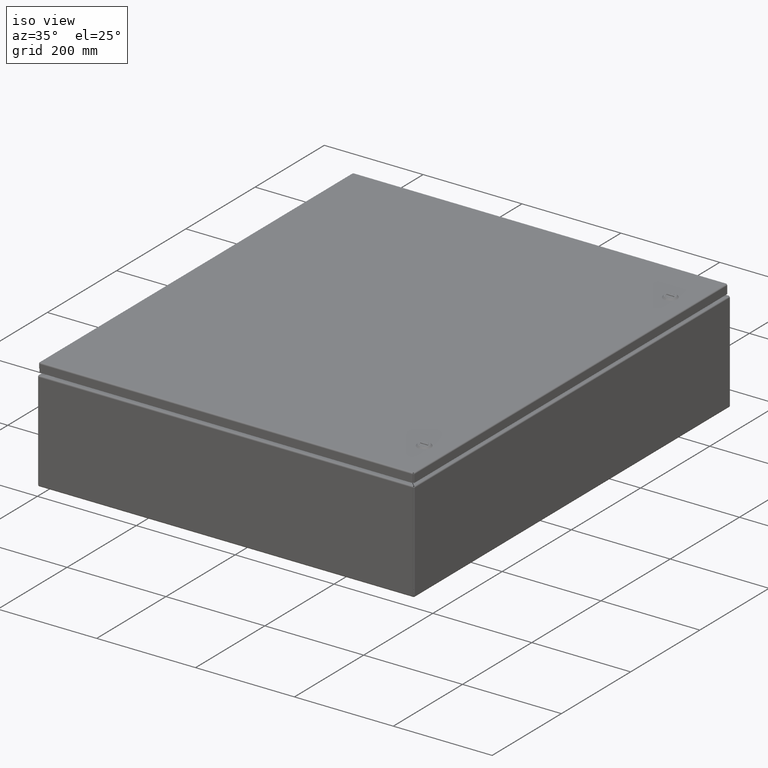
[diagram: clean part render]
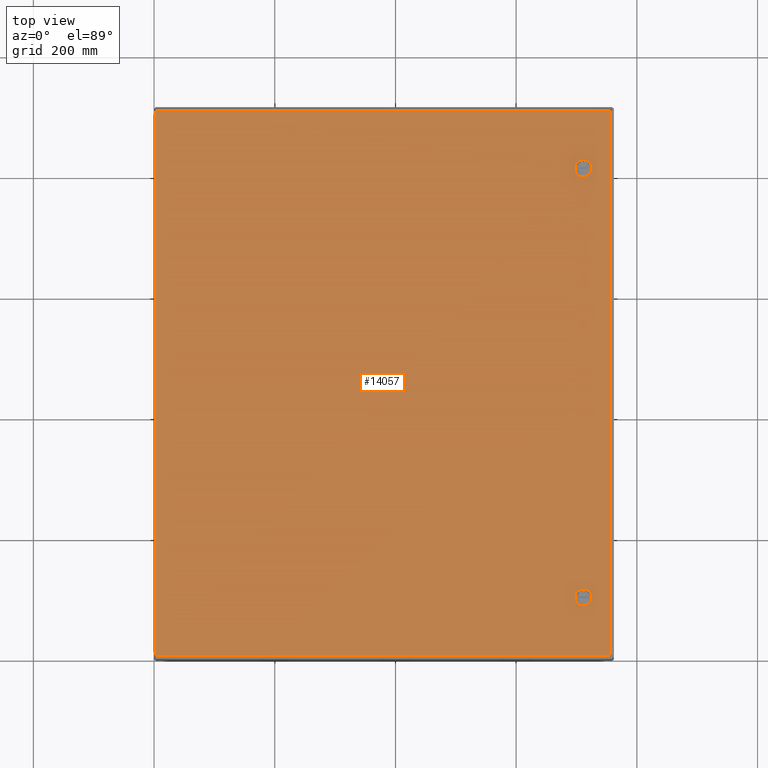
[diagram: tour spotlight — one face highlighted and labeled with its STEP entity id]
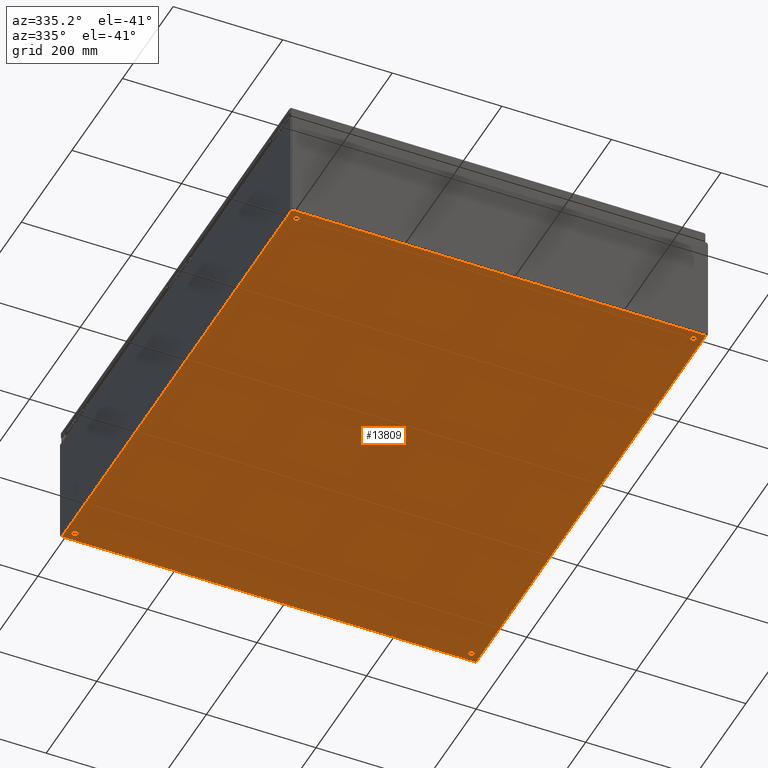
[diagram: tour spotlight — one face highlighted and labeled with its STEP entity id]
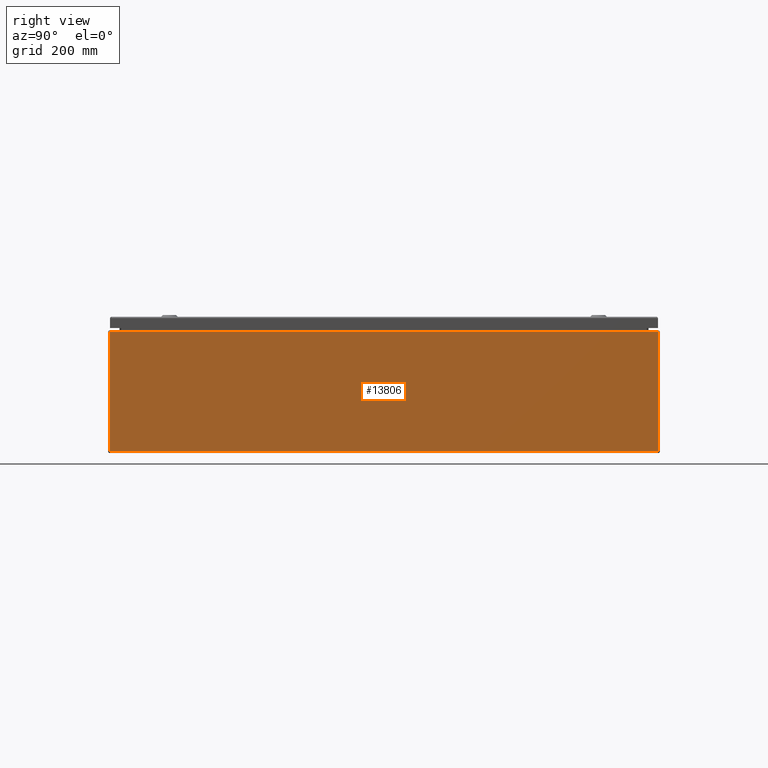
[diagram: tour spotlight — one face highlighted and labeled with its STEP entity id]
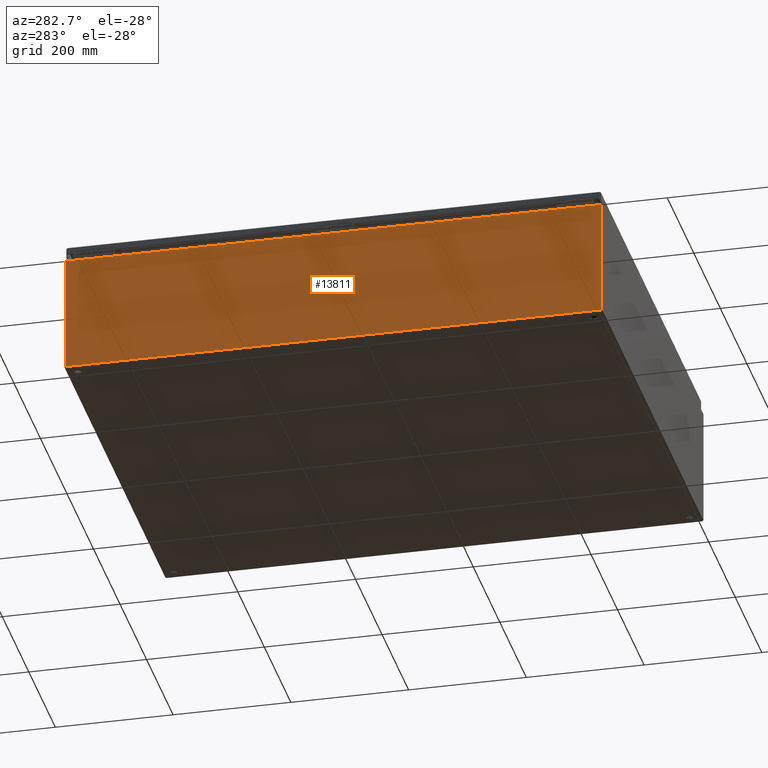
[diagram: tour spotlight — one face highlighted and labeled with its STEP entity id]
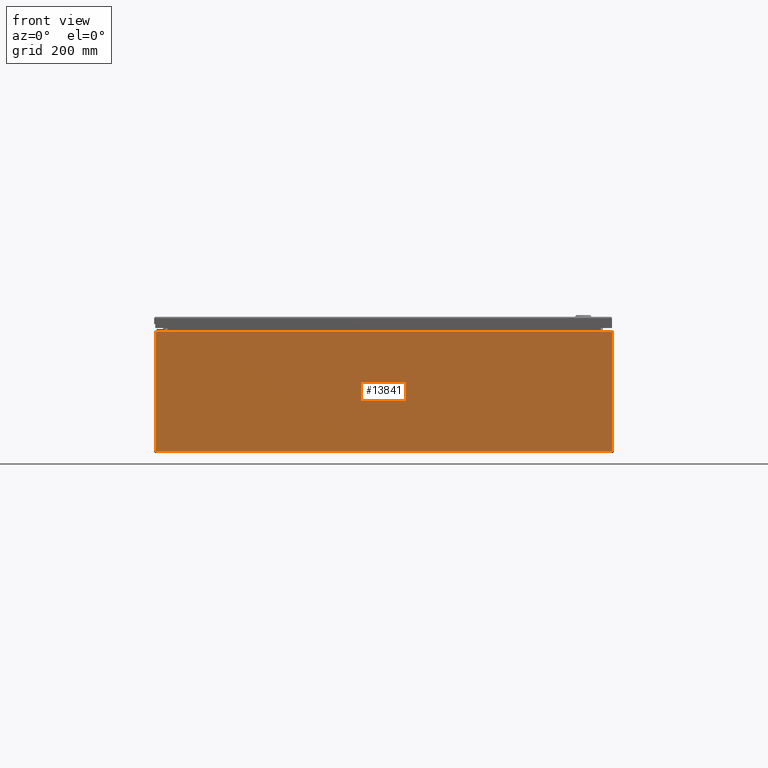
[diagram: tour spotlight — one face highlighted and labeled with its STEP entity id]
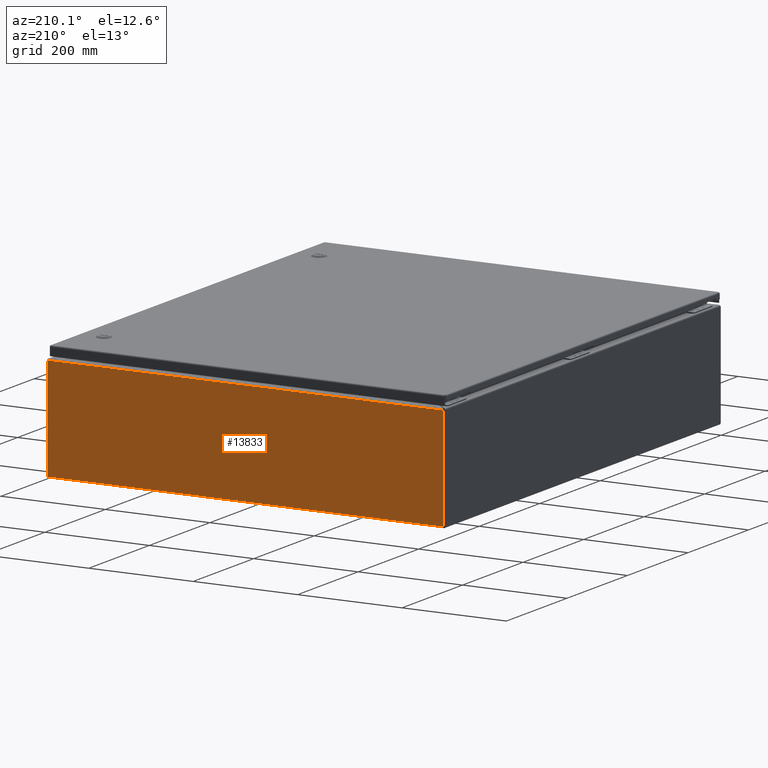
[diagram: tour spotlight — one face highlighted and labeled with its STEP entity id]
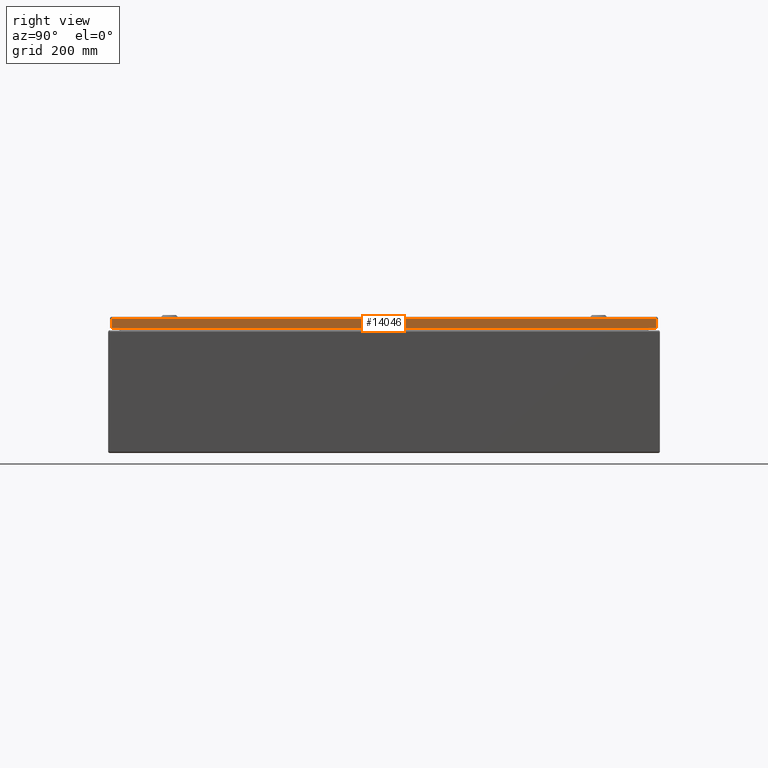
[diagram: tour spotlight — one face highlighted and labeled with its STEP entity id]
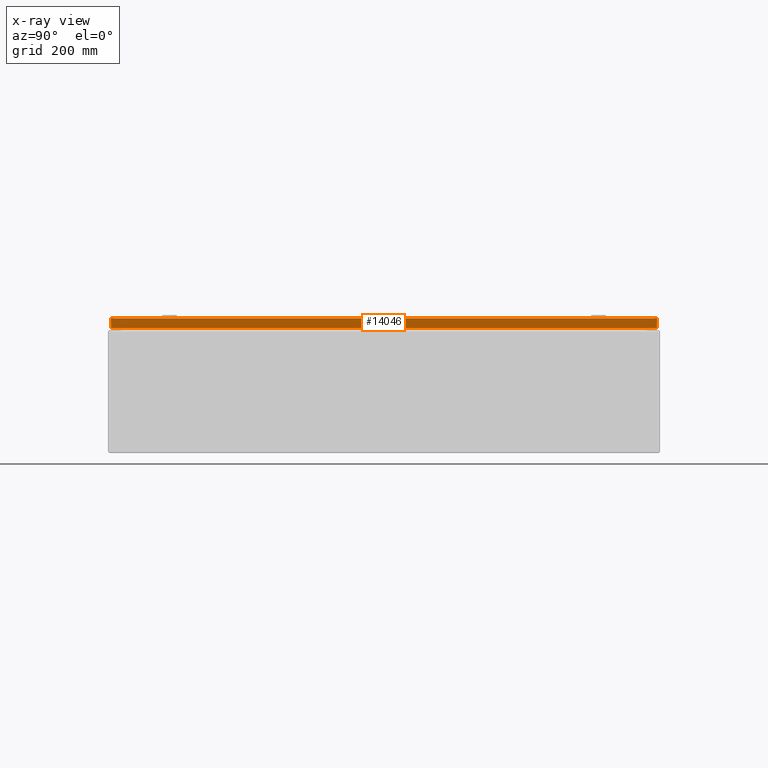
[diagram: x-ray of the same camera — body ghosted, this tour face saturated]
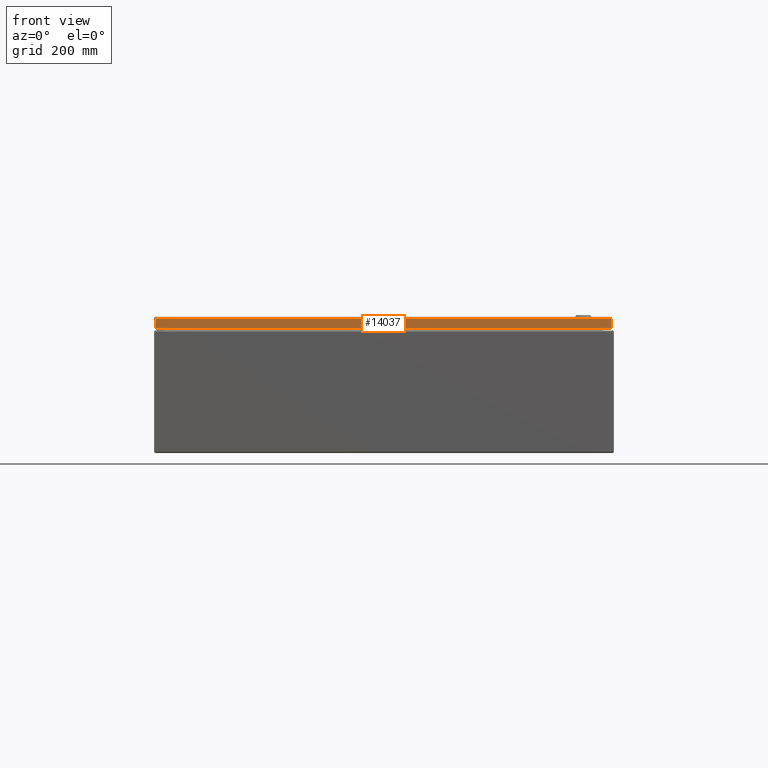
[diagram: tour spotlight — one face highlighted and labeled with its STEP entity id]
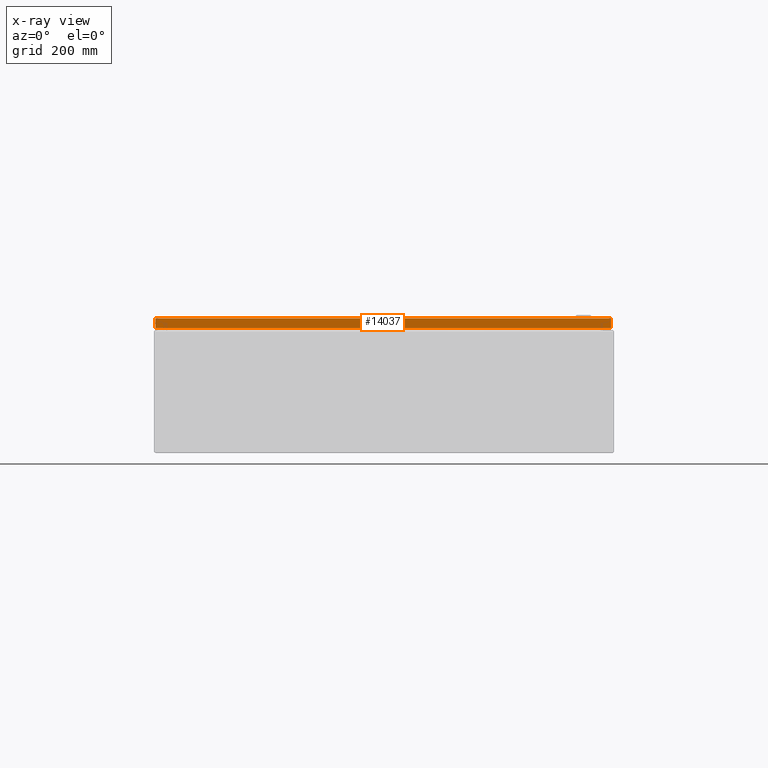
[diagram: x-ray of the same camera — body ghosted, this tour face saturated]
A machine part: a face-by-face anatomy tour. The part has 2151 B-rep faces; the first image is the clean iso view, then the 8 largest visible faces are spotlighted one at a time (largest first), each with its STEP entity span.

Face 1 — top view, entity #14057. In plain terms, the highlighted planar face has unit normal (-0, -0, -1).
Definition (entity closure, byte-faithful):
#542=FACE_BOUND('',#2824,.T.);
#543=FACE_BOUND('',#2825,.T.);
#756=CIRCLE('',#14895,0.453);
#758=CIRCLE('',#14899,0.453);
#760=CIRCLE('',#14903,0.453);
#762=CIRCLE('',#14907,0.453);
#764=CIRCLE('',#14911,0.453);
#766=CIRCLE('',#14915,0.453);
#768=CIRCLE('',#14919,0.453);
#770=CIRCLE('',#14923,0.453);
#1372=PLANE('',#14965);
#1899=FACE_OUTER_BOUND('',#2823,.T.);
#2823=EDGE_LOOP('',(#10362,#10363,#10364,#10365));
#2824=EDGE_LOOP('',(#10366,#10367,#10368,#10369,#10370,#10371,#10372,#10373));
#2825=EDGE_LOOP('',(#10374,#10375,#10376,#10377,#10378,#10379,#10380,#10381));
#4135=LINE('',#22659,#5216);
#4139=LINE('',#22671,#5220);
#4143=LINE('',#22683,#5224);
#4147=LINE('',#22693,#5228);
#4151=LINE('',#22707,#5232);
#4155=LINE('',#22719,#5236);
#4159=LINE('',#22731,#5240);
#4163=LINE('',#22741,#5244);
#4211=LINE('',#22847,#5292);
#4217=LINE('',#22929,#5298);
#4232=LINE('',#23029,#5313);
#4247=LINE('',#23128,#5328);
#5216=VECTOR('',#16707,0.425248162841435);
#5220=VECTOR('',#16719,0.425248162841369);
#5224=VECTOR('',#16731,0.425248162841435);
#5228=VECTOR('',#16743,0.425248162841459);
#5232=VECTOR('',#16755,0.425248162841431);
#5236=VECTOR('',#16767,0.425248162841431);
#5240=VECTOR('',#16779,0.425248162841408);
#5244=VECTOR('',#16791,0.425248162841408);
#5292=VECTOR('',#16873,35.5395);
#5298=VECTOR('',#16885,29.6645);
#5313=VECTOR('',#16914,35.5395);
#5328=VECTOR('',#16943,29.6645);
#6309=VERTEX_POINT('',#22650);
#6310=VERTEX_POINT('',#22652);
#6312=VERTEX_POINT('',#22658);
#6314=VERTEX_POINT('',#22664);
#6316=VERTEX_POINT('',#22670);
#6318=VERTEX_POINT('',#22676);
#6320=VERTEX_POINT('',#22682);
#6322=VERTEX_POINT('',#22688);
#6325=VERTEX_POINT('',#22698);
#6326=VERTEX_POINT('',#22700);
#6328=VERTEX_POINT('',#22706);
#6330=VERTEX_POINT('',#22712);
#6332=VERTEX_POINT('',#22718);
#6334=VERTEX_POINT('',#22724);
#6336=VERTEX_POINT('',#22730);
#6338=VERTEX_POINT('',#22736);
#6371=VERTEX_POINT('',#22838);
#6372=VERTEX_POINT('',#22846);
#6377=VERTEX_POINT('',#22921);
#6387=VERTEX_POINT('',#23021);
#7737=EDGE_CURVE('',#6310,#6309,#756,.T.);
#7740=EDGE_CURVE('',#6312,#6310,#4135,.T.);
#7743=EDGE_CURVE('',#6314,#6312,#758,.T.);
#7746=EDGE_CURVE('',#6316,#6314,#4139,.T.);
#7749=EDGE_CURVE('',#6318,#6316,#760,.T.);
#7752=EDGE_CURVE('',#6320,#6318,#4143,.T.);
#7755=EDGE_CURVE('',#6322,#6320,#762,.T.);
#7758=EDGE_CURVE('',#6309,#6322,#4147,.T.);
#7761=EDGE_CURVE('',#6326,#6325,#764,.T.);
#7764=EDGE_CURVE('',#6328,#6326,#4151,.T.);
#7767=EDGE_CURVE('',#6330,#6328,#766,.T.);
#7770=EDGE_CURVE('',#6332,#6330,#4155,.T.);
#7773=EDGE_CURVE('',#6334,#6332,#768,.T.);
#7776=EDGE_CURVE('',#6336,#6334,#4159,.T.);
#7779=EDGE_CURVE('',#6338,#6336,#770,.T.);
#7782=EDGE_CURVE('',#6325,#6338,#4163,.T.);
#7831=EDGE_CURVE('',#6372,#6371,#4211,.T.);
#7841=EDGE_CURVE('',#6371,#6377,#4217,.T.);
#7860=EDGE_CURVE('',#6377,#6387,#4232,.T.);
#7879=EDGE_CURVE('',#6387,#6372,#4247,.T.);
#10362=ORIENTED_EDGE('',*,*,#7831,.T.);
#10363=ORIENTED_EDGE('',*,*,#7841,.T.);
#10364=ORIENTED_EDGE('',*,*,#7860,.T.);
#10365=ORIENTED_EDGE('',*,*,#7879,.T.);
#10366=ORIENTED_EDGE('',*,*,#7737,.T.);
#10367=ORIENTED_EDGE('',*,*,#7758,.T.);
#10368=ORIENTED_EDGE('',*,*,#7755,.T.);
#10369=ORIENTED_EDGE('',*,*,#7752,.T.);
#10370=ORIENTED_EDGE('',*,*,#7749,.T.);
#10371=ORIENTED_EDGE('',*,*,#7746,.T.);
#10372=ORIENTED_EDGE('',*,*,#7743,.T.);
#10373=ORIENTED_EDGE('',*,*,#7740,.T.);
#10374=ORIENTED_EDGE('',*,*,#7761,.T.);
#10375=ORIENTED_EDGE('',*,*,#7782,.T.);
#10376=ORIENTED_EDGE('',*,*,#7779,.T.);
#10377=ORIENTED_EDGE('',*,*,#7776,.T.);
#10378=ORIENTED_EDGE('',*,*,#7773,.T.);
#10379=ORIENTED_EDGE('',*,*,#7770,.T.);
#10380=ORIENTED_EDGE('',*,*,#7767,.T.);
#10381=ORIENTED_EDGE('',*,*,#7764,.T.);
#14057=ADVANCED_FACE('',(#1899,#542,#543),#1372,.F.);
#14895=AXIS2_PLACEMENT_3D('',#22653,#16701,#16702);
#14899=AXIS2_PLACEMENT_3D('',#22665,#16713,#16714);
#14903=AXIS2_PLACEMENT_3D('',#22677,#16725,#16726);
#14907=AXIS2_PLACEMENT_3D('',#22689,#16737,#16738);
#14911=AXIS2_PLACEMENT_3D('',#22701,#16749,#16750);
#14915=AXIS2_PLACEMENT_3D('',#22713,#16761,#16762);
#14919=AXIS2_PLACEMENT_3D('',#22725,#16773,#16774);
#14923=AXIS2_PLACEMENT_3D('',#22737,#16785,#16786);
#14965=AXIS2_PLACEMENT_3D('',#23214,#16968,#16969);
#16701=DIRECTION('center_axis',(0.,0.,1.));
#16702=DIRECTION('ref_axis',(-0.469368833158343,-0.883002207505494,0.));
#16707=DIRECTION('',(0.,1.,0.));
#16713=DIRECTION('center_axis',(0.,0.,1.));
#16714=DIRECTION('ref_axis',(-0.883002207505508,0.469368833158317,0.));
#16719=DIRECTION('',(1.,0.,0.));
#16725=DIRECTION('center_axis',(0.,0.,1.));
#16726=DIRECTION('ref_axis',(0.469368833158244,0.883002207505547,0.));
#16731=DIRECTION('',(0.,-1.,0.));
#16737=DIRECTION('center_axis',(0.,0.,1.));
#16738=DIRECTION('ref_axis',(0.883002207505508,-0.469368833158317,0.));
#16743=DIRECTION('',(-1.,0.,0.));
#16749=DIRECTION('center_axis',(0.,0.,1.));
#16750=DIRECTION('ref_axis',(-0.469368833158288,-0.883002207505523,0.));
#16755=DIRECTION('',(0.,1.,0.));
#16761=DIRECTION('center_axis',(0.,0.,1.));
#16762=DIRECTION('ref_axis',(-0.883002207505511,0.469368833158312,0.));
#16767=DIRECTION('',(1.,0.,0.));
#16773=DIRECTION('center_axis',(0.,0.,1.));
#16774=DIRECTION('ref_axis',(0.469368833158311,0.883002207505511,0.));
#16779=DIRECTION('',(0.,-1.,0.));
#16785=DIRECTION('center_axis',(0.,0.,1.));
#16786=DIRECTION('ref_axis',(0.883002207505524,-0.469368833158286,0.));
#16791=DIRECTION('',(-1.,0.,0.));
#16873=DIRECTION('',(0.,-1.,0.));
#16885=DIRECTION('',(-1.,0.,0.));
#16914=DIRECTION('',(-3.06241855027742E-16,1.,0.));
#16943=DIRECTION('',(1.,0.,0.));
#16968=DIRECTION('center_axis',(0.,0.,1.));
#16969=DIRECTION('ref_axis',(1.,0.,0.));
#22650=CARTESIAN_POINT('',(2.08762408142072,4.27499999999998,0.));
#22652=CARTESIAN_POINT('',(2.27499999999998,4.08762408142071,0.));
#22653=CARTESIAN_POINT('Origin',(1.87499999999999,3.87499999999999,0.));
#22658=CARTESIAN_POINT('',(2.27499999999998,3.66237591857928,0.));
#22659=CARTESIAN_POINT('',(2.27499999999998,10.9813120407104,0.));
#22664=CARTESIAN_POINT('',(2.08762408142067,3.47499999999998,0.));
#22665=CARTESIAN_POINT('Origin',(1.87499999999999,3.87499999999999,0.));
#22670=CARTESIAN_POINT('',(1.66237591857931,3.47499999999998,0.));
#22671=CARTESIAN_POINT('',(8.51256204071033,3.47499999999998,0.));
#22676=CARTESIAN_POINT('',(1.47499999999999,3.66237591857928,0.));
#22677=CARTESIAN_POINT('Origin',(1.87499999999999,3.87499999999999,0.));
#22682=CARTESIAN_POINT('',(1.47499999999999,4.08762408142071,0.));
#22683=CARTESIAN_POINT('',(1.475,10.7686879592896,0.));
#22688=CARTESIAN_POINT('',(1.66237591857926,4.27499999999998,0.));
#22689=CARTESIAN_POINT('Origin',(1.87499999999999,3.87499999999999,0.));
#22693=CARTESIAN_POINT('',(8.29993795928963,4.27499999999998,0.));
#22698=CARTESIAN_POINT('',(2.08762408142069,32.275,0.));
#22700=CARTESIAN_POINT('',(2.27499999999999,32.0876240814207,0.));
#22701=CARTESIAN_POINT('Origin',(1.87499999999999,31.875,0.));
#22706=CARTESIAN_POINT('',(2.27499999999999,31.6623759185793,0.));
#22707=CARTESIAN_POINT('',(2.27499999999999,24.9813120407104,0.));
#22712=CARTESIAN_POINT('',(2.0876240814207,31.475,0.));
#22713=CARTESIAN_POINT('Origin',(1.87499999999999,31.875,0.));
#22718=CARTESIAN_POINT('',(1.66237591857927,31.475,0.));
#22719=CARTESIAN_POINT('',(8.51256204071035,31.475,0.));
#22724=CARTESIAN_POINT('',(1.47499999999999,31.6623759185793,0.));
#22725=CARTESIAN_POINT('Origin',(1.87499999999999,31.875,0.));
#22730=CARTESIAN_POINT('',(1.47499999999999,32.0876240814207,0.));
#22731=CARTESIAN_POINT('',(1.47499999999999,24.7686879592896,0.));
#22736=CARTESIAN_POINT('',(1.66237591857929,32.275,0.));
#22737=CARTESIAN_POINT('Origin',(1.87499999999999,31.875,0.));
#22741=CARTESIAN_POINT('',(8.29993795928964,32.275,0.));
#22838=CARTESIAN_POINT('',(29.76975,0.105250000000001,-2.18547839493141E-17));
#22846=CARTESIAN_POINT('',(29.76975,35.64475,-2.18547839493141E-17));
#22847=CARTESIAN_POINT('',(29.76975,26.759875,0.));
#22921=CARTESIAN_POINT('',(0.105250000000001,0.105250000000001,-1.09273919746571E-17));
#22929=CARTESIAN_POINT('',(22.353625,0.105250000000001,0.));
#23021=CARTESIAN_POINT('',(0.10524999999999,35.64475,-2.18547839493141E-17));
#23029=CARTESIAN_POINT('',(0.105249999999998,8.990125,0.));
#23128=CARTESIAN_POINT('',(7.52137499999999,35.64475,0.));
#23214=CARTESIAN_POINT('Origin',(14.9375,17.875,0.));

Face 2 — auxiliary view, entity #13809. In plain terms, the highlighted planar face has unit normal (0, 0, 1).
Definition (entity closure, byte-faithful):
#507=FACE_BOUND('',#2541,.T.);
#508=FACE_BOUND('',#2542,.T.);
#509=FACE_BOUND('',#2543,.T.);
#510=FACE_BOUND('',#2544,.T.);
#728=CIRCLE('',#14718,0.21875);
#730=CIRCLE('',#14721,0.21875);
#731=CIRCLE('',#14722,0.21875);
#732=CIRCLE('',#14723,0.21875);
#1260=PLANE('',#14720);
#1651=FACE_OUTER_BOUND('',#2540,.T.);
#2540=EDGE_LOOP('',(#9306,#9307,#9308,#9309));
#2541=EDGE_LOOP('',(#9310));
#2542=EDGE_LOOP('',(#9311));
#2543=EDGE_LOOP('',(#9312));
#2544=EDGE_LOOP('',(#9313));
#3923=LINE('',#20074,#5004);
#3924=LINE('',#20096,#5005);
#3925=LINE('',#20098,#5006);
#3926=LINE('',#20099,#5007);
#5004=VECTOR('',#16135,35.7895);
#5005=VECTOR('',#16144,29.7895);
#5006=VECTOR('',#16145,35.7895);
#5007=VECTOR('',#16146,29.7895);
#6090=VERTEX_POINT('',#20072);
#6091=VERTEX_POINT('',#20073);
#6092=VERTEX_POINT('',#20090);
#6094=VERTEX_POINT('',#20095);
#6095=VERTEX_POINT('',#20097);
#6096=VERTEX_POINT('',#20100);
#6097=VERTEX_POINT('',#20102);
#6098=VERTEX_POINT('',#20104);
#7351=EDGE_CURVE('',#6090,#6091,#3923,.T.);
#7354=EDGE_CURVE('',#6092,#6092,#728,.T.);
#7356=EDGE_CURVE('',#6091,#6094,#3924,.T.);
#7357=EDGE_CURVE('',#6094,#6095,#3925,.T.);
#7358=EDGE_CURVE('',#6095,#6090,#3926,.T.);
#7359=EDGE_CURVE('',#6096,#6096,#730,.T.);
#7360=EDGE_CURVE('',#6097,#6097,#731,.T.);
#7361=EDGE_CURVE('',#6098,#6098,#732,.T.);
#9306=ORIENTED_EDGE('',*,*,#7351,.T.);
#9307=ORIENTED_EDGE('',*,*,#7356,.T.);
#9308=ORIENTED_EDGE('',*,*,#7357,.T.);
#9309=ORIENTED_EDGE('',*,*,#7358,.T.);
#9310=ORIENTED_EDGE('',*,*,#7359,.T.);
#9311=ORIENTED_EDGE('',*,*,#7360,.T.);
#9312=ORIENTED_EDGE('',*,*,#7361,.T.);
#9313=ORIENTED_EDGE('',*,*,#7354,.T.);
#13809=ADVANCED_FACE('',(#1651,#507,#508,#509,#510),#1260,.F.);
#14718=AXIS2_PLACEMENT_3D('',#20091,#16138,#16139);
#14720=AXIS2_PLACEMENT_3D('',#20094,#16142,#16143);
#14721=AXIS2_PLACEMENT_3D('',#20101,#16147,#16148);
#14722=AXIS2_PLACEMENT_3D('',#20103,#16149,#16150);
#14723=AXIS2_PLACEMENT_3D('',#20105,#16151,#16152);
#16135=DIRECTION('',(0.,-1.,0.));
#16138=DIRECTION('center_axis',(0.,0.,1.));
#16139=DIRECTION('ref_axis',(1.,0.,0.));
#16142=DIRECTION('center_axis',(0.,0.,1.));
#16143=DIRECTION('ref_axis',(1.,0.,0.));
#16144=DIRECTION('',(-1.,0.,0.));
#16145=DIRECTION('',(-3.06545258876366E-16,1.,0.));
#16146=DIRECTION('',(1.,0.,0.));
#16147=DIRECTION('center_axis',(0.,0.,1.));
#16148=DIRECTION('ref_axis',(1.,0.,0.));
#16149=DIRECTION('center_axis',(0.,0.,1.));
#16150=DIRECTION('ref_axis',(1.,0.,0.));
#16151=DIRECTION('center_axis',(0.,0.,1.));
#16152=DIRECTION('ref_axis',(1.,0.,0.));
#20072=CARTESIAN_POINT('',(29.89475,35.89475,-2.18547839493141E-17));
#20073=CARTESIAN_POINT('',(29.89475,0.105250000000007,-3.27821759239712E-17));
#20074=CARTESIAN_POINT('',(29.89475,26.947375,0.));
#20090=CARTESIAN_POINT('',(0.531249999999996,0.750000000000002,0.));
#20091=CARTESIAN_POINT('Origin',(0.749999999999996,0.750000000000002,0.));
#20094=CARTESIAN_POINT('Origin',(15.,18.,0.));
#20095=CARTESIAN_POINT('',(0.105250000000007,0.105250000000007,-1.09273919746571E-17));
#20096=CARTESIAN_POINT('',(22.447375,0.105250000000001,0.));
#20097=CARTESIAN_POINT('',(0.10524999999999,35.89475,-2.18547839493141E-17));
#20098=CARTESIAN_POINT('',(0.105250000000004,9.052625,0.));
#20099=CARTESIAN_POINT('',(7.55262499999999,35.89475,0.));
#20100=CARTESIAN_POINT('',(29.03125,0.749999999999999,0.));
#20101=CARTESIAN_POINT('Origin',(29.25,0.749999999999999,0.));
#20102=CARTESIAN_POINT('',(29.03125,35.25,0.));
#20103=CARTESIAN_POINT('Origin',(29.25,35.25,0.));
#20104=CARTESIAN_POINT('',(0.531249999999993,35.25,0.));
#20105=CARTESIAN_POINT('Origin',(0.749999999999993,35.25,0.));

Face 3 — right view, entity #13806. In plain terms, the highlighted planar face has unit normal (-1, -0, -0).
Definition (entity closure, byte-faithful):
#1259=PLANE('',#14715);
#1648=FACE_OUTER_BOUND('',#2536,.T.);
#2536=EDGE_LOOP('',(#9296,#9297,#9298,#9299));
#3919=LINE('',#20050,#5000);
#3920=LINE('',#20068,#5001);
#3921=LINE('',#20069,#5002);
#3922=LINE('',#20070,#5003);
#5000=VECTOR('',#16127,35.8505857864376);
#5001=VECTOR('',#16130,35.8505857864376);
#5002=VECTOR('',#16131,7.78949999999999);
#5003=VECTOR('',#16132,7.7895);
#6086=VERTEX_POINT('',#20048);
#6087=VERTEX_POINT('',#20049);
#6088=VERTEX_POINT('',#20066);
#6089=VERTEX_POINT('',#20067);
#7345=EDGE_CURVE('',#6086,#6087,#3919,.T.);
#7348=EDGE_CURVE('',#6088,#6089,#3920,.T.);
#7349=EDGE_CURVE('',#6086,#6089,#3921,.T.);
#7350=EDGE_CURVE('',#6088,#6087,#3922,.T.);
#9296=ORIENTED_EDGE('',*,*,#7348,.T.);
#9297=ORIENTED_EDGE('',*,*,#7349,.F.);
#9298=ORIENTED_EDGE('',*,*,#7345,.T.);
#9299=ORIENTED_EDGE('',*,*,#7350,.F.);
#13806=ADVANCED_FACE('',(#1648),#1259,.F.);
#14715=AXIS2_PLACEMENT_3D('',#20065,#16128,#16129);
#16127=DIRECTION('',(4.10769051866426E-16,-1.,4.6817851660942E-16));
#16128=DIRECTION('center_axis',(-1.,-4.1076905186645E-16,-5.15966915357209E-14));
#16129=DIRECTION('ref_axis',(-5.41433564649196E-14,0.,1.));
#16130=DIRECTION('',(-4.1076905186645E-16,1.,-1.31389264581561E-29));
#16131=DIRECTION('',(5.14531160026499E-14,7.98721666536274E-30,-1.));
#16132=DIRECTION('',(-5.14531160026499E-14,-7.98721666536274E-30,1.));
#20048=CARTESIAN_POINT('',(29.9999999999996,35.9252928932188,7.89475000000001));
#20049=CARTESIAN_POINT('',(29.9999999999996,0.0747071067811889,7.89475000000002));
#20050=CARTESIAN_POINT('',(29.9999999999996,26.9626464466094,7.89475000000001));
#20065=CARTESIAN_POINT('Origin',(29.9999999999998,18.,4.02153807738617));
#20066=CARTESIAN_POINT('',(30.,0.0747071067811921,0.105250000000018));
#20067=CARTESIAN_POINT('',(30.,35.9252928932188,0.105250000000012));
#20068=CARTESIAN_POINT('',(30.,18.,0.105250000000007));
#20069=CARTESIAN_POINT('',(30.,35.9252928932188,0.105250000000012));
#20070=CARTESIAN_POINT('',(30.,0.0747071067811889,0.105250000000023));

Face 4 — auxiliary view, entity #13811. In plain terms, the highlighted planar face has unit normal (1, 0, 0).
Definition (entity closure, byte-faithful):
#1261=PLANE('',#14725);
#1653=FACE_OUTER_BOUND('',#2546,.T.);
#2546=EDGE_LOOP('',(#9318,#9319,#9320,#9321));
#3927=LINE('',#20109,#5008);
#3928=LINE('',#20127,#5009);
#3929=LINE('',#20128,#5010);
#3930=LINE('',#20129,#5011);
#5008=VECTOR('',#16155,35.8505857864376);
#5009=VECTOR('',#16158,35.8505857864376);
#5010=VECTOR('',#16159,7.7895);
#5011=VECTOR('',#16160,7.7895);
#6099=VERTEX_POINT('',#20107);
#6100=VERTEX_POINT('',#20108);
#6101=VERTEX_POINT('',#20125);
#6102=VERTEX_POINT('',#20126);
#7362=EDGE_CURVE('',#6099,#6100,#3927,.T.);
#7365=EDGE_CURVE('',#6101,#6102,#3928,.T.);
#7366=EDGE_CURVE('',#6099,#6102,#3929,.T.);
#7367=EDGE_CURVE('',#6101,#6100,#3930,.T.);
#9318=ORIENTED_EDGE('',*,*,#7365,.T.);
#9319=ORIENTED_EDGE('',*,*,#7366,.F.);
#9320=ORIENTED_EDGE('',*,*,#7362,.T.);
#9321=ORIENTED_EDGE('',*,*,#7367,.F.);
#13811=ADVANCED_FACE('',(#1653),#1261,.F.);
#14725=AXIS2_PLACEMENT_3D('',#20124,#16156,#16157);
#16155=DIRECTION('',(3.05580226492018E-16,-1.,-1.64717978487295E-34));
#16156=DIRECTION('center_axis',(1.,3.05580226492018E-16,2.82565996658982E-16));
#16157=DIRECTION('ref_axis',(2.82565996658982E-16,0.,-1.));
#16158=DIRECTION('',(-3.05580226492018E-16,1.,2.34089258304712E-16));
#16159=DIRECTION('',(-2.83276944882399E-16,-9.86076131526265E-32,1.));
#16160=DIRECTION('',(2.83276944882399E-16,9.86076131526265E-32,-1.));
#20107=CARTESIAN_POINT('',(-3.92888311923358E-15,35.9252928932188,0.105250000000007));
#20108=CARTESIAN_POINT('',(7.02533837954671E-15,0.0747071067811956,0.10525));
#20109=CARTESIAN_POINT('',(1.54276393416923E-15,18.,0.10525));
#20124=CARTESIAN_POINT('Origin',(4.38833508315244E-16,18.,4.02153807738616));
#20125=CARTESIAN_POINT('',(4.79712507687445E-15,0.0747071067811954,7.89475));
#20126=CARTESIAN_POINT('',(-6.15212168173192E-15,35.9252928932188,7.89475000000001));
#20127=CARTESIAN_POINT('',(2.08166817117217E-15,9.0373535533906,7.89475));
#20128=CARTESIAN_POINT('',(-3.92888311923358E-15,35.9252928932188,0.105250000000007));
#20129=CARTESIAN_POINT('',(7.01441098757205E-15,0.0747071067811954,0.10525));

Face 5 — front view, entity #13841. In plain terms, the highlighted planar face has unit normal (0, 1, -0).
Definition (entity closure, byte-faithful):
#1275=PLANE('',#14780);
#1683=FACE_OUTER_BOUND('',#2588,.T.);
#2588=EDGE_LOOP('',(#9476,#9477,#9478,#9479));
#3990=LINE('',#20604,#5071);
#3991=LINE('',#20622,#5072);
#3992=LINE('',#20623,#5073);
#3993=LINE('',#20624,#5074);
#5071=VECTOR('',#16328,29.8505857864376);
#5072=VECTOR('',#16331,29.8505857864376);
#5073=VECTOR('',#16332,7.7895);
#5074=VECTOR('',#16333,7.7895);
#6206=VERTEX_POINT('',#20602);
#6207=VERTEX_POINT('',#20603);
#6208=VERTEX_POINT('',#20620);
#6209=VERTEX_POINT('',#20621);
#7493=EDGE_CURVE('',#6206,#6207,#3990,.T.);
#7496=EDGE_CURVE('',#6208,#6209,#3991,.T.);
#7497=EDGE_CURVE('',#6206,#6209,#3992,.T.);
#7498=EDGE_CURVE('',#6208,#6207,#3993,.T.);
#9476=ORIENTED_EDGE('',*,*,#7496,.T.);
#9477=ORIENTED_EDGE('',*,*,#7497,.F.);
#9478=ORIENTED_EDGE('',*,*,#7493,.T.);
#9479=ORIENTED_EDGE('',*,*,#7498,.F.);
#13841=ADVANCED_FACE('',(#1683),#1275,.F.);
#14780=AXIS2_PLACEMENT_3D('',#20619,#16329,#16330);
#16328=DIRECTION('',(-1.,-1.47500510768021E-32,-9.37138173946049E-17));
#16329=DIRECTION('center_axis',(4.10953760771327E-34,1.,-1.61779823499606E-16));
#16330=DIRECTION('ref_axis',(1.,0.,0.));
#16331=DIRECTION('',(1.,-4.10953760771327E-34,6.60864050666165E-50));
#16332=DIRECTION('',(0.,-1.60812264967664E-16,-1.));
#16333=DIRECTION('',(0.,1.60812264967664E-16,1.));
#20602=CARTESIAN_POINT('',(29.9252928932188,2.80833973748686E-15,7.89475));
#20603=CARTESIAN_POINT('',(0.0747071067811871,2.80833973748686E-15,7.89475));
#20604=CARTESIAN_POINT('',(22.4626464466094,2.82473082544885E-15,7.89475));
#20619=CARTESIAN_POINT('Origin',(15.,2.19715938808399E-15,4.02188337589803));
#20620=CARTESIAN_POINT('',(0.0747071067811874,1.56731670385788E-15,0.105249999999999));
#20621=CARTESIAN_POINT('',(29.9252928932188,1.56731670385788E-15,0.10525));
#20622=CARTESIAN_POINT('',(15.,1.56185300787055E-15,0.10525));
#20623=CARTESIAN_POINT('',(29.9252928932188,1.55638931188322E-15,0.10525));
#20624=CARTESIAN_POINT('',(0.0747071067811871,1.55638931188322E-15,0.105249999999999));

Face 6 — auxiliary view, entity #13833. In plain terms, the highlighted planar face has unit normal (0, -1, 0).
Definition (entity closure, byte-faithful):
#1272=PLANE('',#14764);
#1675=FACE_OUTER_BOUND('',#2580,.T.);
#2580=EDGE_LOOP('',(#9430,#9431,#9432,#9433));
#3974=LINE('',#20454,#5055);
#3975=LINE('',#20472,#5056);
#3976=LINE('',#20473,#5057);
#3977=LINE('',#20474,#5058);
#5055=VECTOR('',#16280,29.8505857864376);
#5056=VECTOR('',#16283,29.8505857864376);
#5057=VECTOR('',#16284,7.7895);
#5058=VECTOR('',#16285,7.7895);
#6172=VERTEX_POINT('',#20452);
#6173=VERTEX_POINT('',#20453);
#6174=VERTEX_POINT('',#20470);
#6175=VERTEX_POINT('',#20471);
#7453=EDGE_CURVE('',#6172,#6173,#3974,.T.);
#7456=EDGE_CURVE('',#6174,#6175,#3975,.T.);
#7457=EDGE_CURVE('',#6172,#6175,#3976,.T.);
#7458=EDGE_CURVE('',#6174,#6173,#3977,.T.);
#9430=ORIENTED_EDGE('',*,*,#7456,.T.);
#9431=ORIENTED_EDGE('',*,*,#7457,.F.);
#9432=ORIENTED_EDGE('',*,*,#7453,.T.);
#9433=ORIENTED_EDGE('',*,*,#7458,.F.);
#13833=ADVANCED_FACE('',(#1675),#1272,.F.);
#14764=AXIS2_PLACEMENT_3D('',#20469,#16281,#16282);
#16280=DIRECTION('',(-1.,-4.93193624112706E-16,1.90870493270114E-29));
#16281=DIRECTION('center_axis',(4.93193624112706E-16,-1.,6.20905095412791E-14));
#16282=DIRECTION('ref_axis',(1.,0.,0.));
#16283=DIRECTION('',(1.,4.93193624112741E-16,5.62282904367633E-16));
#16284=DIRECTION('',(-1.16110464487218E-29,6.22337217189661E-14,1.));
#16285=DIRECTION('',(1.16110464487218E-29,-6.22337217189661E-14,-1.));
#20452=CARTESIAN_POINT('',(29.9252928932188,36.,0.10524999999999));
#20453=CARTESIAN_POINT('',(0.0747071067811857,36.,0.105249999999984));
#20454=CARTESIAN_POINT('',(15.,36.,0.10524999999999));
#20469=CARTESIAN_POINT('Origin',(15.,36.0000000000002,4.02188337589802));
#20470=CARTESIAN_POINT('',(0.0747071067811809,36.0000000000005,7.89474999999998));
#20471=CARTESIAN_POINT('',(29.9252928932188,36.0000000000005,7.89475));
#20472=CARTESIAN_POINT('',(7.53735355339059,36.0000000000005,7.89474999999998));
#20473=CARTESIAN_POINT('',(29.9252928932188,36.,0.105249999999995));
#20474=CARTESIAN_POINT('',(0.0747071067811809,36.,0.105249999999984));

Face 7 — right view, entity #14046. An x-ray twin of the same camera follows (body ghosted, this face saturated) — the face is partly hidden behind the body. In plain terms, the highlighted planar face has unit normal (-1, 0, 0).
Definition (entity closure, byte-faithful):
#1366=PLANE('',#14956);
#1888=FACE_OUTER_BOUND('',#2812,.T.);
#2812=EDGE_LOOP('',(#10318,#10319,#10320,#10321));
#4231=LINE('',#23020,#5312);
#4237=LINE('',#23048,#5318);
#4242=LINE('',#23110,#5323);
#4244=LINE('',#23113,#5325);
#5312=VECTOR('',#16913,35.6005857864376);
#5318=VECTOR('',#16923,0.62475);
#5323=VECTOR('',#16930,0.62475);
#5325=VECTOR('',#16934,35.6005857864376);
#6385=VERTEX_POINT('',#23018);
#6386=VERTEX_POINT('',#23019);
#6392=VERTEX_POINT('',#23047);
#6394=VERTEX_POINT('',#23109);
#7858=EDGE_CURVE('',#6385,#6386,#4231,.T.);
#7866=EDGE_CURVE('',#6392,#6386,#4237,.T.);
#7873=EDGE_CURVE('',#6385,#6394,#4242,.T.);
#7875=EDGE_CURVE('',#6394,#6392,#4244,.T.);
#10318=ORIENTED_EDGE('',*,*,#7858,.T.);
#10319=ORIENTED_EDGE('',*,*,#7866,.F.);
#10320=ORIENTED_EDGE('',*,*,#7875,.F.);
#10321=ORIENTED_EDGE('',*,*,#7873,.F.);
#14046=ADVANCED_FACE('',(#1888),#1366,.F.);
#14956=AXIS2_PLACEMENT_3D('',#23114,#16935,#16936);
#16913=DIRECTION('',(3.06174829951938E-16,-1.,8.03990733090294E-37));
#16923=DIRECTION('',(6.12323399573677E-17,0.,-1.));
#16930=DIRECTION('',(-6.12323399573677E-17,0.,1.));
#16934=DIRECTION('',(3.06161699786838E-16,-1.,-3.23801561476906E-18));
#16935=DIRECTION('center_axis',(1.,3.06174829951938E-16,5.45065454411242E-17));
#16936=DIRECTION('ref_axis',(5.45065454411248E-17,0.,-1.));
#23018=CARTESIAN_POINT('',(-9.4776212408399E-15,35.6752928932188,0.105249999999999));
#23019=CARTESIAN_POINT('',(1.421914616943E-15,0.0747071067811902,0.105249999999999));
#23020=CARTESIAN_POINT('',(-4.02785331194845E-15,17.875,0.10525));
#23047=CARTESIAN_POINT('',(1.38365971255464E-15,0.074707106781187,0.729999999999999));
#23048=CARTESIAN_POINT('',(1.41098722496835E-15,0.074707106781187,0.105249999999999));
#23109=CARTESIAN_POINT('',(-9.51587614522826E-15,35.6752928932188,0.729999999999999));
#23110=CARTESIAN_POINT('',(-9.48854863281455E-15,35.6752928932188,0.105249999999999));
#23113=CARTESIAN_POINT('',(-9.52680353720292E-15,35.6752928932188,0.729999999999999));
#23114=CARTESIAN_POINT('Origin',(-4.04495837989781E-15,17.875,0.384596958833665));

Face 8 — front view, entity #14037. An x-ray twin of the same camera follows (body ghosted, this face saturated) — the face is partly hidden behind the body. In plain terms, the highlighted planar face has unit normal (0, 1, -0).
Definition (entity closure, byte-faithful):
#1361=PLANE('',#14949);
#1879=FACE_OUTER_BOUND('',#2803,.T.);
#2803=EDGE_LOOP('',(#10282,#10283,#10284,#10285));
#4216=LINE('',#22920,#5297);
#4222=LINE('',#22948,#5303);
#4227=LINE('',#23010,#5308);
#4229=LINE('',#23013,#5310);
#5297=VECTOR('',#16884,29.7255857864376);
#5303=VECTOR('',#16894,0.62475);
#5308=VECTOR('',#16901,0.62475);
#5310=VECTOR('',#16905,29.7255857864376);
#6375=VERTEX_POINT('',#22918);
#6376=VERTEX_POINT('',#22919);
#6382=VERTEX_POINT('',#22947);
#6384=VERTEX_POINT('',#23009);
#7839=EDGE_CURVE('',#6375,#6376,#4216,.T.);
#7847=EDGE_CURVE('',#6382,#6376,#4222,.T.);
#7854=EDGE_CURVE('',#6375,#6384,#4227,.T.);
#7856=EDGE_CURVE('',#6384,#6382,#4229,.T.);
#10282=ORIENTED_EDGE('',*,*,#7839,.T.);
#10283=ORIENTED_EDGE('',*,*,#7847,.F.);
#10284=ORIENTED_EDGE('',*,*,#7856,.F.);
#10285=ORIENTED_EDGE('',*,*,#7854,.F.);
#14037=ADVANCED_FACE('',(#1879),#1361,.F.);
#14949=AXIS2_PLACEMENT_3D('',#23014,#16906,#16907);
#16884=DIRECTION('',(1.,1.57282795801348E-20,-2.52930026332613E-36));
#16894=DIRECTION('',(0.,-1.60812264967664E-16,-1.));
#16901=DIRECTION('',(0.,1.60812264967664E-16,1.));
#16905=DIRECTION('',(1.,0.,0.));
#16906=DIRECTION('center_axis',(-1.57282795801348E-20,1.,-1.55375039908197E-16));
#16907=DIRECTION('ref_axis',(1.,1.57282795799492E-20,0.));
#22918=CARTESIAN_POINT('',(0.0747071067811864,1.57824409583254E-15,0.10525));
#22919=CARTESIAN_POINT('',(29.8002928932188,1.57824409583254E-15,0.10525));
#22920=CARTESIAN_POINT('',(14.9375,1.57824409583254E-15,0.10525));
#22947=CARTESIAN_POINT('',(29.8002928932188,1.67871155837108E-15,0.73));
#22948=CARTESIAN_POINT('',(29.8002928932188,1.54546191990857E-15,0.10525));
#23009=CARTESIAN_POINT('',(0.0747071067811898,1.67871155837108E-15,0.73));
#23010=CARTESIAN_POINT('',(0.0747071067811898,1.54546191990857E-15,0.10525));
#23013=CARTESIAN_POINT('',(0.0747071067811898,1.64592938244711E-15,0.73));
#23014=CARTESIAN_POINT('Origin',(14.9375,1.62317377359579E-15,0.384642108383575));